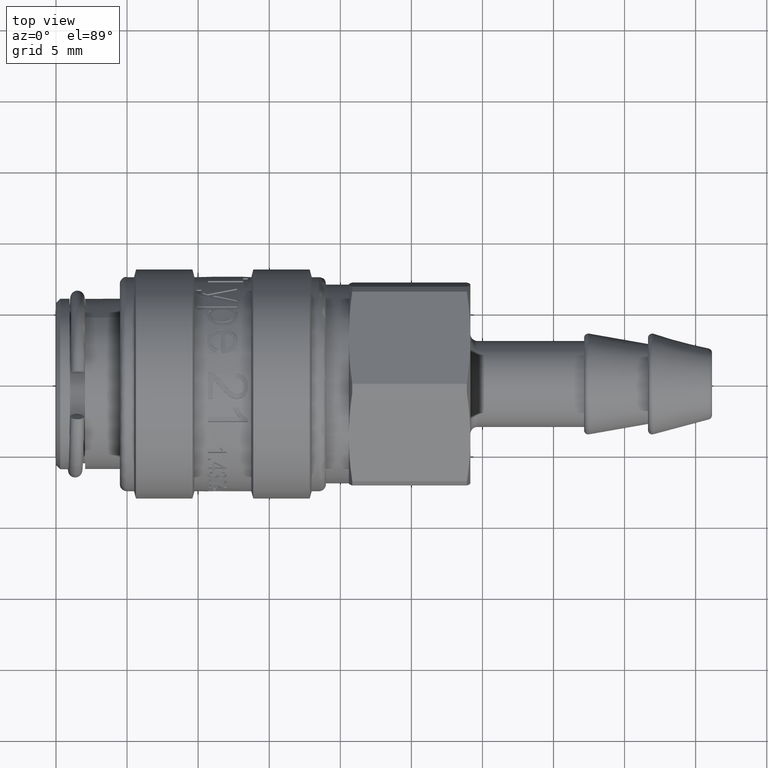
[diagram: clean part render]
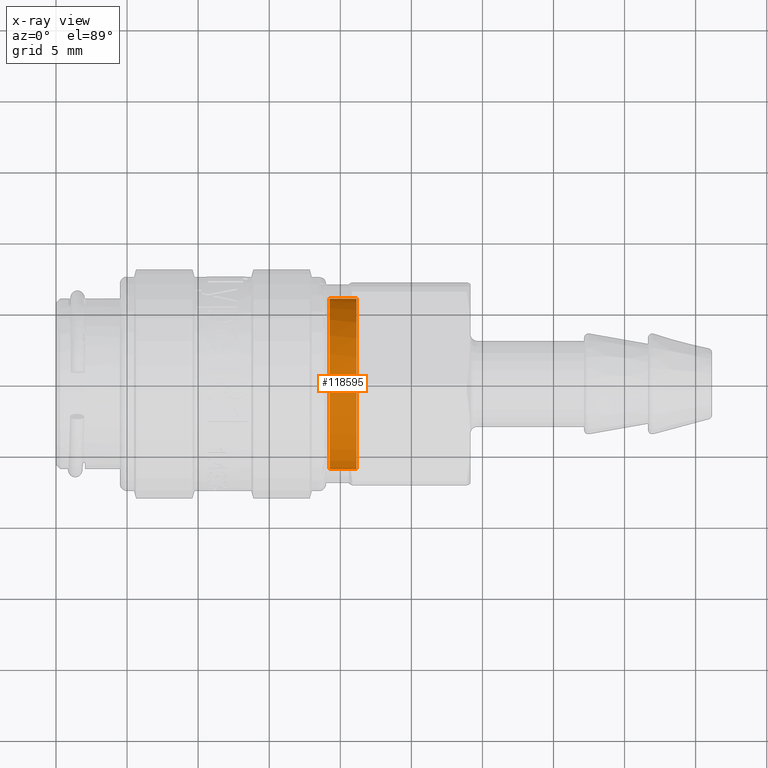
[diagram: x-ray — body ghosted, one internal face saturated and labeled with its STEP entity id]
A machine part, top view, then the same camera in x-ray: the body is ghosted and one INTERNAL B-rep face — a face not visible from any outside direction — is saturated and labeled: STEP entity #118595.
In plain terms, the highlighted cylindrical surface (bore or boss wall) has radius 6 mm, axis along (-1, 0, 0).
Its self-contained STEP definition (entity closure, byte-faithful):
#118568=CARTESIAN_POINT('',(18.650000000000002,0.0,0.0));
#118569=DIRECTION('',(-1.0,0.0,0.0));
#118570=DIRECTION('',(0.0,-0.99838169350048,-0.056868216809693));
#118571=AXIS2_PLACEMENT_3D('',#118568,#118569,#118570);
#118572=CYLINDRICAL_SURFACE('',#118571,6.000000000000001);
#118573=CARTESIAN_POINT('',(21.150000000000002,-5.990290161002879,-0.341209300858158));
#118574=VERTEX_POINT('',#118573);
#118575=CARTESIAN_POINT('',(21.150000000000002,0.0,0.0));
#118576=DIRECTION('',(-1.0,0.0,0.0));
#118577=DIRECTION('',(0.0,-0.99838169350048,-0.056868216809693));
#118578=AXIS2_PLACEMENT_3D('',#118575,#118576,#118577);
#118579=CIRCLE('',#118578,5.999999999999999);
#118580=EDGE_CURVE('',#118574,#118574,#118579,.T.);
#118581=ORIENTED_EDGE('',*,*,#118580,.F.);
#118582=EDGE_LOOP('',(#118581));
#118583=FACE_OUTER_BOUND('',#118582,.T.);
#118584=CARTESIAN_POINT('',(19.249999999999996,6.0,7.347881E-016));
#118585=VERTEX_POINT('',#118584);
#118586=CARTESIAN_POINT('',(19.249999999999996,0.0,0.0));
#118587=DIRECTION('',(1.0,0.0,0.0));
#118588=DIRECTION('',(0.0,-1.0,0.0));
#118589=AXIS2_PLACEMENT_3D('',#118586,#118587,#118588);
#118590=CIRCLE('',#118589,6.0);
#118591=EDGE_CURVE('',#118585,#118585,#118590,.T.);
#118592=ORIENTED_EDGE('',*,*,#118591,.F.);
#118593=EDGE_LOOP('',(#118592));
#118594=FACE_BOUND('',#118593,.T.);
#118595=ADVANCED_FACE('',(#118583,#118594),#118572,.F.);